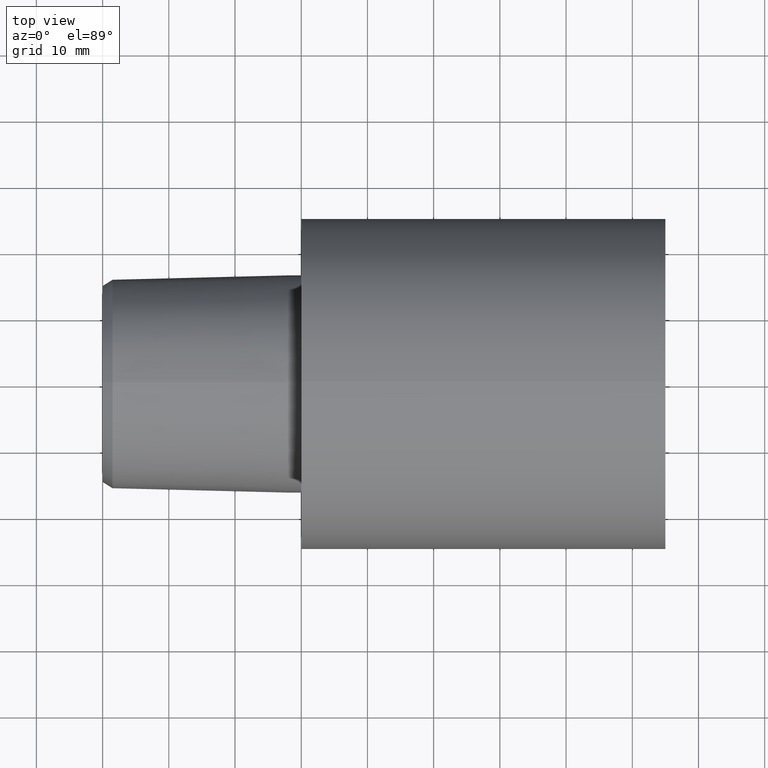
[diagram: clean part render]
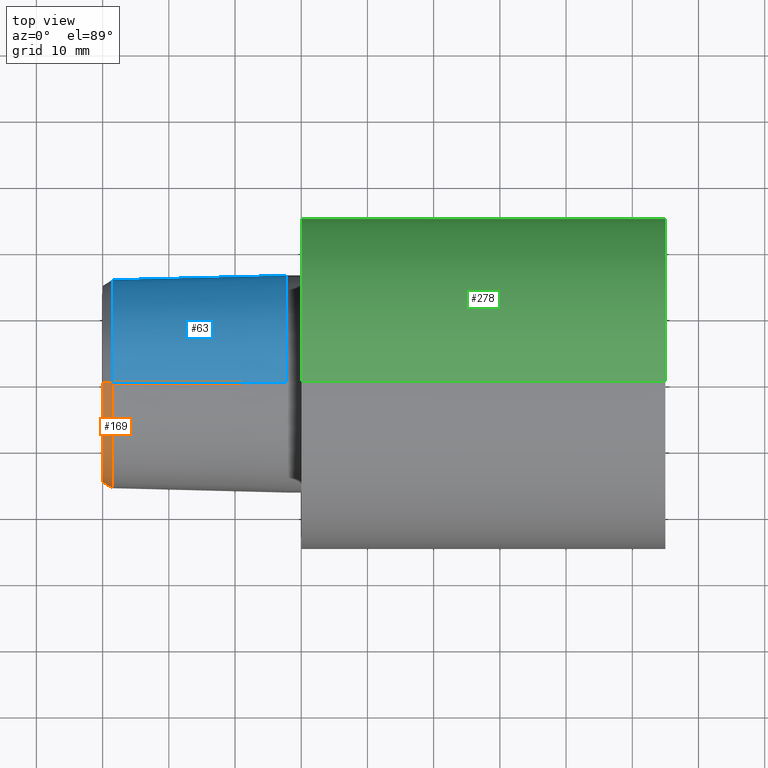
[diagram: same view with three faces highlighted in distinct colors, each labeled with its STEP entity id]
A machine part, top view with three faces highlighted in distinct colors.
Their STEP definitions:

[orange] entity #169 — the highlighted conical surface has half-angle 30 deg.
#7 = CARTESIAN_POINT ( 'NONE',  ( -29.99999996776130118, 1.874864587049208810E-15, 14.87641846198772733 ) ) ;
#21 = DIRECTION ( 'NONE',  ( 1.000000000000000000, 0.000000000000000000, 0.000000000000000000 ) ) ;
#28 = VERTEX_POINT ( 'NONE', #129 ) ;
#41 = DIRECTION ( 'NONE',  ( 0.8660254037844387076, 0.000000000000000000, -0.4999999999999998890 ) ) ;
#53 = CARTESIAN_POINT ( 'NONE',  ( -29.99999996776130118, 0.000000000000000000, 0.000000000000000000 ) ) ;
#55 = AXIS2_PLACEMENT_3D ( 'NONE', #53, #244, #242 ) ;
#69 = CIRCLE ( 'NONE', #336, 15.74244386394270734 ) ;
#76 = CIRCLE ( 'NONE', #55, 14.87641846198772733 ) ;
#82 = VERTEX_POINT ( 'NONE', #7 ) ;
#95 = CARTESIAN_POINT ( 'NONE',  ( -28.49999997092999848, 1.927893348873434490E-15, 15.74244386394270734 ) ) ;
#98 = FACE_OUTER_BOUND ( 'NONE', #241, .T. ) ;
#100 = CARTESIAN_POINT ( 'NONE',  ( -28.49999997092999848, 0.000000000000000000, 0.000000000000000000 ) ) ;
#105 = ORIENTED_EDGE ( 'NONE', *, *, #187, .F. ) ;
#124 = LINE ( 'NONE', #171, #332 ) ;
#128 = LINE ( 'NONE', #295, #311 ) ;
#129 = CARTESIAN_POINT ( 'NONE',  ( -29.99999996776130118, 0.000000000000000000, -14.87641846198772733 ) ) ;
#147 = CARTESIAN_POINT ( 'NONE',  ( -28.49999997092999848, 0.000000000000000000, -15.74244386394270734 ) ) ;
#169 = ADVANCED_FACE ( 'NONE', ( #98 ), #190, .T. ) ;
#171 = CARTESIAN_POINT ( 'NONE',  ( -28.49999997092999848, 0.000000000000000000, -15.74244386394270734 ) ) ;
#178 = ORIENTED_EDGE ( 'NONE', *, *, #249, .T. ) ;
#187 = EDGE_CURVE ( 'NONE', #297, #319, #69, .T. ) ;
#190 = CONICAL_SURFACE ( 'NONE', #275, 15.74244386394270734, 0.5235987755982987046 ) ;
#196 = ORIENTED_EDGE ( 'NONE', *, *, #348, .T. ) ;
#199 = DIRECTION ( 'NONE',  ( 0.000000000000000000, 0.000000000000000000, -1.000000000000000000 ) ) ;
#200 = ORIENTED_EDGE ( 'NONE', *, *, #339, .F. ) ;
#205 = DIRECTION ( 'NONE',  ( 1.000000000000000000, 0.000000000000000000, 0.000000000000000000 ) ) ;
#224 = CARTESIAN_POINT ( 'NONE',  ( -28.49999997092999848, 0.000000000000000000, 0.000000000000000000 ) ) ;
#241 = EDGE_LOOP ( 'NONE', ( #200, #196, #178, #105 ) ) ;
#242 = DIRECTION ( 'NONE',  ( 0.000000000000000000, 0.000000000000000000, -1.000000000000000000 ) ) ;
#244 = DIRECTION ( 'NONE',  ( 1.000000000000000000, 0.000000000000000000, 0.000000000000000000 ) ) ;
#249 = EDGE_CURVE ( 'NONE', #28, #319, #124, .T. ) ;
#275 = AXIS2_PLACEMENT_3D ( 'NONE', #100, #205, #306 ) ;
#295 = CARTESIAN_POINT ( 'NONE',  ( -28.49999997092999848, 1.927893348873434490E-15, 15.74244386394270734 ) ) ;
#297 = VERTEX_POINT ( 'NONE', #95 ) ;
#306 = DIRECTION ( 'NONE',  ( 0.000000000000000000, 0.000000000000000000, -1.000000000000000000 ) ) ;
#311 = VECTOR ( 'NONE', #325, 1000.000000000000000 ) ;
#319 = VERTEX_POINT ( 'NONE', #147 ) ;
#325 = DIRECTION ( 'NONE',  ( 0.8660254037844387076, 6.123233995736748780E-17, 0.4999999999999998890 ) ) ;
#332 = VECTOR ( 'NONE', #41, 1000.000000000000000 ) ;
#336 = AXIS2_PLACEMENT_3D ( 'NONE', #224, #21, #199 ) ;
#339 = EDGE_CURVE ( 'NONE', #82, #297, #128, .T. ) ;
#348 = EDGE_CURVE ( 'NONE', #82, #28, #76, .T. ) ;

[blue] entity #63 — the highlighted conical surface has half-angle 1.432 deg.
#4 = LINE ( 'NONE', #271, #139 ) ;
#16 = CARTESIAN_POINT ( 'NONE',  ( -2.199937517756059613, 0.000000000000000000, -16.40000330327199762 ) ) ;
#27 = DIRECTION ( 'NONE',  ( 0.000000000000000000, 0.000000000000000000, -1.000000000000000000 ) ) ;
#49 = EDGE_LOOP ( 'NONE', ( #321, #123, #172, #225 ) ) ;
#52 = EDGE_CURVE ( 'NONE', #297, #210, #4, .T. ) ;
#63 = ADVANCED_FACE ( 'NONE', ( #83 ), #349, .T. ) ;
#70 = CARTESIAN_POINT ( 'NONE',  ( -2.199937517756059613, 0.000000000000000000, -16.40000330327199762 ) ) ;
#73 = LINE ( 'NONE', #16, #235 ) ;
#83 = FACE_OUTER_BOUND ( 'NONE', #49, .T. ) ;
#95 = CARTESIAN_POINT ( 'NONE',  ( -28.49999997092999848, 1.927893348873434490E-15, 15.74244386394270734 ) ) ;
#106 = DIRECTION ( 'NONE',  ( 1.000000000000000000, 0.000000000000000000, 0.000000000000000000 ) ) ;
#123 = ORIENTED_EDGE ( 'NONE', *, *, #52, .T. ) ;
#137 = EDGE_CURVE ( 'NONE', #245, #210, #284, .T. ) ;
#139 = VECTOR ( 'NONE', #329, 999.9999999999998863 ) ;
#147 = CARTESIAN_POINT ( 'NONE',  ( -28.49999997092999848, 0.000000000000000000, -15.74244386394270734 ) ) ;
#148 = DIRECTION ( 'NONE',  ( 0.9996875914402667540, 0.000000000000000000, -0.02499438977767824352 ) ) ;
#172 = ORIENTED_EDGE ( 'NONE', *, *, #137, .F. ) ;
#182 = DIRECTION ( 'NONE',  ( 1.000000000000000000, 0.000000000000000000, 0.000000000000000000 ) ) ;
#208 = AXIS2_PLACEMENT_3D ( 'NONE', #318, #182, #27 ) ;
#210 = VERTEX_POINT ( 'NONE', #288 ) ;
#216 = DIRECTION ( 'NONE',  ( 1.000000000000000000, 0.000000000000000000, 0.000000000000000000 ) ) ;
#225 = ORIENTED_EDGE ( 'NONE', *, *, #279, .F. ) ;
#235 = VECTOR ( 'NONE', #148, 999.9999999999998863 ) ;
#237 = DIRECTION ( 'NONE',  ( 0.000000000000000000, 0.000000000000000000, -1.000000000000000000 ) ) ;
#238 = AXIS2_PLACEMENT_3D ( 'NONE', #269, #106, #237 ) ;
#245 = VERTEX_POINT ( 'NONE', #70 ) ;
#247 = CARTESIAN_POINT ( 'NONE',  ( -2.199937517756059613, 0.000000000000000000, 0.000000000000000000 ) ) ;
#254 = AXIS2_PLACEMENT_3D ( 'NONE', #247, #216, #333 ) ;
#266 = CIRCLE ( 'NONE', #208, 15.74244386394270734 ) ;
#269 = CARTESIAN_POINT ( 'NONE',  ( -2.199937517756059613, 0.000000000000000000, 0.000000000000000000 ) ) ;
#271 = CARTESIAN_POINT ( 'NONE',  ( -2.199937517756059613, 2.008421155135807723E-15, 16.40000330327199762 ) ) ;
#279 = EDGE_CURVE ( 'NONE', #319, #245, #73, .T. ) ;
#284 = CIRCLE ( 'NONE', #254, 16.40000330327199762 ) ;
#288 = CARTESIAN_POINT ( 'NONE',  ( -2.199937517756059613, 2.008421155135807723E-15, 16.40000330327199762 ) ) ;
#297 = VERTEX_POINT ( 'NONE', #95 ) ;
#318 = CARTESIAN_POINT ( 'NONE',  ( -28.49999997092999848, 0.000000000000000000, 0.000000000000000000 ) ) ;
#319 = VERTEX_POINT ( 'NONE', #147 ) ;
#321 = ORIENTED_EDGE ( 'NONE', *, *, #334, .T. ) ;
#329 = DIRECTION ( 'NONE',  ( 0.9996875914402667540, 3.060929943787498310E-18, 0.02499438977767824352 ) ) ;
#333 = DIRECTION ( 'NONE',  ( 0.000000000000000000, 0.000000000000000000, -1.000000000000000000 ) ) ;
#334 = EDGE_CURVE ( 'NONE', #319, #297, #266, .T. ) ;
#349 = CONICAL_SURFACE ( 'NONE', #238, 16.40000330327199762, 0.02499699292341668252 ) ;

[green] entity #278 — the highlighted cylindrical surface (partial cylindrical patch) has radius 25 mm, axis along (1, 0, 0).
#6 = CARTESIAN_POINT ( 'NONE',  ( 0.000000000000000000, 0.000000000000000000, -24.99999997449999967 ) ) ;
#8 = EDGE_CURVE ( 'NONE', #345, #283, #96, .T. ) ;
#11 = AXIS2_PLACEMENT_3D ( 'NONE', #48, #258, #92 ) ;
#48 = CARTESIAN_POINT ( 'NONE',  ( 54.99999994390000069, 0.000000000000000000, 0.000000000000000000 ) ) ;
#51 = ORIENTED_EDGE ( 'NONE', *, *, #79, .T. ) ;
#54 = CARTESIAN_POINT ( 'NONE',  ( 0.000000000000000000, 0.000000000000000000, 0.000000000000000000 ) ) ;
#60 = AXIS2_PLACEMENT_3D ( 'NONE', #54, #236, #134 ) ;
#71 = VERTEX_POINT ( 'NONE', #108 ) ;
#79 = EDGE_CURVE ( 'NONE', #283, #118, #265, .T. ) ;
#92 = DIRECTION ( 'NONE',  ( 0.000000000000000000, 0.000000000000000000, -1.000000000000000000 ) ) ;
#96 = CIRCLE ( 'NONE', #60, 24.99999997449999967 ) ;
#103 = AXIS2_PLACEMENT_3D ( 'NONE', #143, #233, #179 ) ;
#108 = CARTESIAN_POINT ( 'NONE',  ( 54.99999994390000069, 0.000000000000000000, -24.99999997449999967 ) ) ;
#118 = VERTEX_POINT ( 'NONE', #277 ) ;
#133 = CARTESIAN_POINT ( 'NONE',  ( 54.99999994390000069, 3.061616994745535943E-15, 24.99999997449999967 ) ) ;
#134 = DIRECTION ( 'NONE',  ( 0.000000000000000000, 0.000000000000000000, -1.000000000000000000 ) ) ;
#143 = CARTESIAN_POINT ( 'NONE',  ( 54.99999994390000069, 0.000000000000000000, 0.000000000000000000 ) ) ;
#162 = CIRCLE ( 'NONE', #103, 24.99999997449999967 ) ;
#173 = FACE_OUTER_BOUND ( 'NONE', #234, .T. ) ;
#179 = DIRECTION ( 'NONE',  ( 0.000000000000000000, 0.000000000000000000, -1.000000000000000000 ) ) ;
#219 = VECTOR ( 'NONE', #341, 1000.000000000000000 ) ;
#221 = LINE ( 'NONE', #282, #219 ) ;
#231 = VECTOR ( 'NONE', #326, 1000.000000000000000 ) ;
#233 = DIRECTION ( 'NONE',  ( 1.000000000000000000, 0.000000000000000000, 0.000000000000000000 ) ) ;
#234 = EDGE_LOOP ( 'NONE', ( #287, #51, #352, #309 ) ) ;
#236 = DIRECTION ( 'NONE',  ( 1.000000000000000000, 0.000000000000000000, 0.000000000000000000 ) ) ;
#258 = DIRECTION ( 'NONE',  ( 1.000000000000000000, 0.000000000000000000, 0.000000000000000000 ) ) ;
#264 = EDGE_CURVE ( 'NONE', #345, #71, #221, .T. ) ;
#265 = LINE ( 'NONE', #133, #231 ) ;
#276 = EDGE_CURVE ( 'NONE', #71, #118, #162, .T. ) ;
#277 = CARTESIAN_POINT ( 'NONE',  ( 54.99999994390000069, 3.061616994745535943E-15, 24.99999997449999967 ) ) ;
#278 = ADVANCED_FACE ( 'NONE', ( #173 ), #344, .T. ) ;
#282 = CARTESIAN_POINT ( 'NONE',  ( 54.99999994390000069, 0.000000000000000000, -24.99999997449999967 ) ) ;
#283 = VERTEX_POINT ( 'NONE', #286 ) ;
#286 = CARTESIAN_POINT ( 'NONE',  ( 0.000000000000000000, 3.061616994745535943E-15, 24.99999997449999967 ) ) ;
#287 = ORIENTED_EDGE ( 'NONE', *, *, #8, .T. ) ;
#309 = ORIENTED_EDGE ( 'NONE', *, *, #264, .F. ) ;
#326 = DIRECTION ( 'NONE',  ( 1.000000000000000000, 0.000000000000000000, 0.000000000000000000 ) ) ;
#341 = DIRECTION ( 'NONE',  ( 1.000000000000000000, 0.000000000000000000, 0.000000000000000000 ) ) ;
#344 = CYLINDRICAL_SURFACE ( 'NONE', #11, 24.99999997449999967 ) ;
#345 = VERTEX_POINT ( 'NONE', #6 ) ;
#352 = ORIENTED_EDGE ( 'NONE', *, *, #276, .F. ) ;